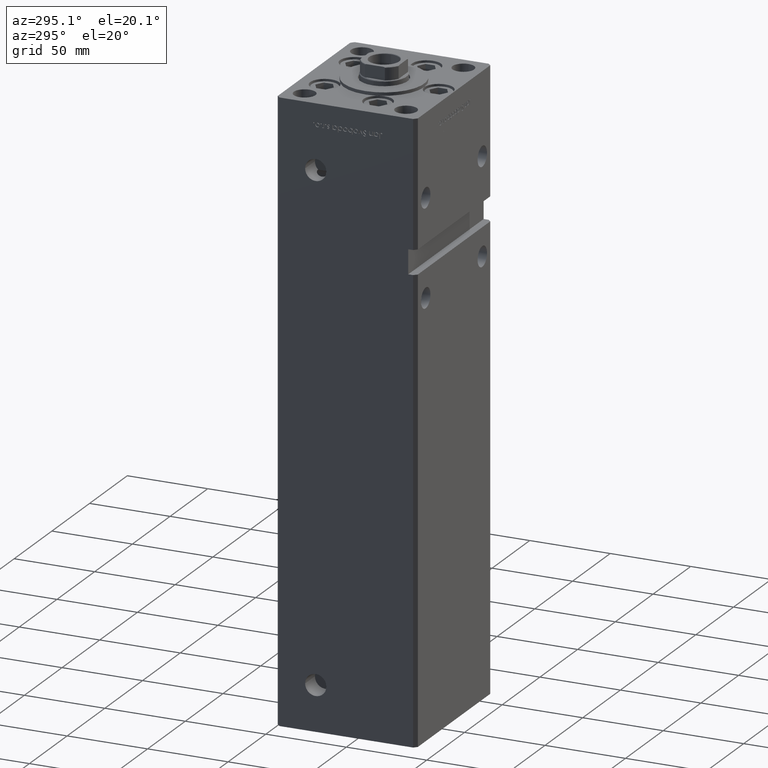
[diagram: clean part render]
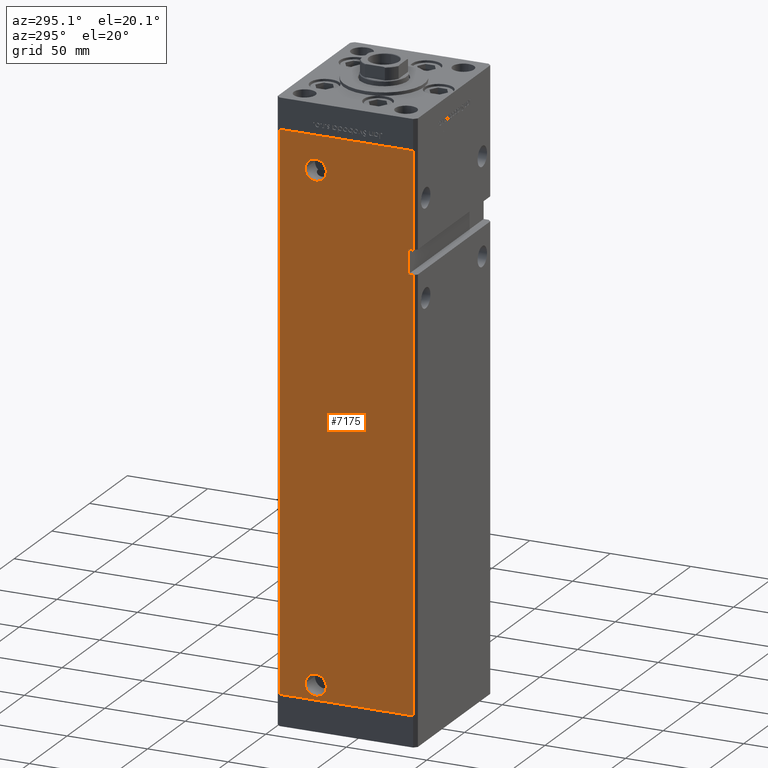
[diagram: same view with one face highlighted and labeled with its STEP entity id]
A machine part, auxiliary view. The second image highlights one B-rep face of the part: STEP entity #7175.
In plain terms, the highlighted planar face has unit normal (1, 0, 0).
Its self-contained STEP definition (entity closure, byte-faithful):
#287 = CARTESIAN_POINT ( 'NONE',  ( -49.99999999999998579, -41.49999999999999289, 264.0000000000000000 ) ) ;
#905 = ORIENTED_EDGE ( 'NONE', *, *, #18878, .F. ) ;
#910 = VECTOR ( 'NONE', #52825, 1000.000000000000000 ) ;
#2425 = VERTEX_POINT ( 'NONE', #37145 ) ;
#2441 = AXIS2_PLACEMENT_3D ( 'NONE', #9037, #46422, #51435 ) ;
#3126 = ORIENTED_EDGE ( 'NONE', *, *, #35845, .T. ) ;
#3244 = EDGE_CURVE ( 'NONE', #45665, #2425, #27998, .T. ) ;
#3525 = DIRECTION ( 'NONE',  ( 3.344045254895050973E-16, -1.000000000000000000, 0.000000000000000000 ) ) ;
#3748 = ORIENTED_EDGE ( 'NONE', *, *, #38235, .F. ) ;
#5147 = VERTEX_POINT ( 'NONE', #46918 ) ;
#5697 = FACE_BOUND ( 'NONE', #23379, .T. ) ;
#6819 = EDGE_CURVE ( 'NONE', #45665, #14748, #24698, .T. ) ;
#6898 = CIRCLE ( 'NONE', #33557, 6.580000000000044480 ) ;
#7175 = ADVANCED_FACE ( 'NONE', ( #18609, #5697, #39067 ), #38015, .F. ) ;
#7682 = EDGE_CURVE ( 'NONE', #42371, #16294, #16479, .T. ) ;
#7973 = CARTESIAN_POINT ( 'NONE',  ( -50.00000000000001421, 41.49999999999999289, 338.5000000000000000 ) ) ;
#8135 = VECTOR ( 'NONE', #29149, 1000.000000000000000 ) ;
#8549 = DIRECTION ( 'NONE',  ( -0.000000000000000000, -0.000000000000000000, -1.000000000000000000 ) ) ;
#9037 = CARTESIAN_POINT ( 'NONE',  ( -50.00000000000000711, 19.00000000000000000, 9.000000000000007105 ) ) ;
#9046 = LINE ( 'NONE', #38617, #47148 ) ;
#10661 = AXIS2_PLACEMENT_3D ( 'NONE', #19228, #11422, #39679 ) ;
#11422 = DIRECTION ( 'NONE',  ( -1.000000000000000000, -2.275047181608927644E-16, 0.000000000000000000 ) ) ;
#12486 = ORIENTED_EDGE ( 'NONE', *, *, #24379, .T. ) ;
#12556 = ORIENTED_EDGE ( 'NONE', *, *, #6819, .T. ) ;
#12753 = CARTESIAN_POINT ( 'NONE',  ( -49.99999999999998579, -38.50000000000000000, 279.0000000000000000 ) ) ;
#12896 = ORIENTED_EDGE ( 'NONE', *, *, #3244, .F. ) ;
#12935 = EDGE_LOOP ( 'NONE', ( #44466, #905 ) ) ;
#13424 = DIRECTION ( 'NONE',  ( -1.000000000000000000, -2.275047181608927644E-16, 0.000000000000000000 ) ) ;
#13727 = EDGE_CURVE ( 'NONE', #50215, #5147, #19638, .T. ) ;
#14568 = EDGE_CURVE ( 'NONE', #16294, #28428, #9046, .T. ) ;
#14727 = CARTESIAN_POINT ( 'NONE',  ( -50.00000000000000711, 25.58000000000004448, 317.5000000000000000 ) ) ;
#14748 = VERTEX_POINT ( 'NONE', #22147 ) ;
#16294 = VERTEX_POINT ( 'NONE', #287 ) ;
#16479 = LINE ( 'NONE', #45526, #19600 ) ;
#16506 = CARTESIAN_POINT ( 'NONE',  ( -50.00000000000000711, 19.00000000000000000, 317.5000000000000000 ) ) ;
#17722 = VERTEX_POINT ( 'NONE', #26250 ) ;
#18609 = FACE_OUTER_BOUND ( 'NONE', #21974, .T. ) ;
#18878 = EDGE_CURVE ( 'NONE', #22114, #26219, #6898, .T. ) ;
#19228 = CARTESIAN_POINT ( 'NONE',  ( -50.00000000000000711, 19.00000000000000000, 9.000000000000007105 ) ) ;
#19320 = ORIENTED_EDGE ( 'NONE', *, *, #7682, .F. ) ;
#19600 = VECTOR ( 'NONE', #25600, 1000.000000000000000 ) ;
#19638 = CIRCLE ( 'NONE', #2441, 6.580000000000002736 ) ;
#19679 = CARTESIAN_POINT ( 'NONE',  ( -50.00000000000001421, 41.49999999999999289, 338.5000000000000000 ) ) ;
#21974 = EDGE_LOOP ( 'NONE', ( #53164, #19320, #3748, #3126, #33306, #12896, #12556, #12486 ) ) ;
#22114 = VERTEX_POINT ( 'NONE', #14727 ) ;
#22147 = CARTESIAN_POINT ( 'NONE',  ( -50.00000000000001421, 41.49999999999999289, 0.000000000000000000 ) ) ;
#22381 = DIRECTION ( 'NONE',  ( 1.000000000000000000, 3.344045254895049987E-16, -0.000000000000000000 ) ) ;
#22958 = CARTESIAN_POINT ( 'NONE',  ( -50.00000000000001421, 41.49999999999999289, 0.000000000000000000 ) ) ;
#23379 = EDGE_LOOP ( 'NONE', ( #52990, #44931 ) ) ;
#24379 = EDGE_CURVE ( 'NONE', #14748, #28428, #43424, .T. ) ;
#24386 = LINE ( 'NONE', #40801, #33130 ) ;
#24698 = LINE ( 'NONE', #45418, #47893 ) ;
#25600 = DIRECTION ( 'NONE',  ( -0.000000000000000000, -1.000000000000000000, -0.000000000000000000 ) ) ;
#25708 = DIRECTION ( 'NONE',  ( -0.000000000000000000, -0.000000000000000000, -1.000000000000000000 ) ) ;
#26204 = DIRECTION ( 'NONE',  ( 3.344045254895050973E-16, -1.000000000000000000, 0.000000000000000000 ) ) ;
#26219 = VERTEX_POINT ( 'NONE', #34881 ) ;
#26250 = CARTESIAN_POINT ( 'NONE',  ( -49.99999999999998579, -38.50000000000000000, 279.0000000000000000 ) ) ;
#26668 = DIRECTION ( 'NONE',  ( -3.344045254895049987E-16, 1.000000000000000000, 0.000000000000000000 ) ) ;
#26687 = CARTESIAN_POINT ( 'NONE',  ( -49.99999999999998579, -41.49999999999999289, 279.0000000000000000 ) ) ;
#26755 = CARTESIAN_POINT ( 'NONE',  ( -49.99999999999998579, -38.50000000000000000, 264.0000000000000000 ) ) ;
#27675 = VECTOR ( 'NONE', #26204, 1000.000000000000000 ) ;
#27998 = LINE ( 'NONE', #19679, #50837 ) ;
#28428 = VERTEX_POINT ( 'NONE', #44683 ) ;
#29149 = DIRECTION ( 'NONE',  ( -0.000000000000000000, -1.000000000000000000, -0.000000000000000000 ) ) ;
#29395 = DIRECTION ( 'NONE',  ( 0.000000000000000000, -1.000000000000000000, 0.000000000000000000 ) ) ;
#29597 = AXIS2_PLACEMENT_3D ( 'NONE', #33861, #13424, #42214 ) ;
#33130 = VECTOR ( 'NONE', #44835, 1000.000000000000000 ) ;
#33200 = LINE ( 'NONE', #12753, #8135 ) ;
#33272 = EDGE_CURVE ( 'NONE', #5147, #50215, #46734, .T. ) ;
#33306 = ORIENTED_EDGE ( 'NONE', *, *, #43021, .F. ) ;
#33557 = AXIS2_PLACEMENT_3D ( 'NONE', #16506, #49335, #29395 ) ;
#33861 = CARTESIAN_POINT ( 'NONE',  ( -50.00000000000000711, 19.00000000000000000, 317.5000000000000000 ) ) ;
#34881 = CARTESIAN_POINT ( 'NONE',  ( -50.00000000000000711, 12.41999999999995552, 317.5000000000000000 ) ) ;
#35347 = EDGE_CURVE ( 'NONE', #26219, #22114, #52810, .T. ) ;
#35612 = LINE ( 'NONE', #40452, #910 ) ;
#35845 = EDGE_CURVE ( 'NONE', #17722, #50509, #33200, .T. ) ;
#37145 = CARTESIAN_POINT ( 'NONE',  ( -49.99999999999998579, -41.49999999999999289, 338.5000000000000000 ) ) ;
#38015 = PLANE ( 'NONE',  #43635 ) ;
#38235 = EDGE_CURVE ( 'NONE', #17722, #42371, #24386, .T. ) ;
#38617 = CARTESIAN_POINT ( 'NONE',  ( -49.99999999999998579, -41.49999999999999289, 338.5000000000000000 ) ) ;
#39067 = FACE_BOUND ( 'NONE', #12935, .T. ) ;
#39679 = DIRECTION ( 'NONE',  ( 0.000000000000000000, -1.000000000000000000, 0.000000000000000000 ) ) ;
#40452 = CARTESIAN_POINT ( 'NONE',  ( -49.99999999999998579, -41.49999999999999289, 338.5000000000000000 ) ) ;
#40801 = CARTESIAN_POINT ( 'NONE',  ( -49.99999999999998579, -38.50000000000000000, 279.0000000000000000 ) ) ;
#40821 = CARTESIAN_POINT ( 'NONE',  ( -50.00000000000000711, 12.41999999999999638, 9.000000000000007105 ) ) ;
#42214 = DIRECTION ( 'NONE',  ( 0.000000000000000000, -1.000000000000000000, 0.000000000000000000 ) ) ;
#42322 = CARTESIAN_POINT ( 'NONE',  ( -50.00000000000001421, 41.49999999999999289, 338.5000000000000000 ) ) ;
#42371 = VERTEX_POINT ( 'NONE', #26755 ) ;
#43021 = EDGE_CURVE ( 'NONE', #2425, #50509, #35612, .T. ) ;
#43424 = LINE ( 'NONE', #22958, #27675 ) ;
#43635 = AXIS2_PLACEMENT_3D ( 'NONE', #42322, #22381, #26668 ) ;
#44466 = ORIENTED_EDGE ( 'NONE', *, *, #35347, .F. ) ;
#44683 = CARTESIAN_POINT ( 'NONE',  ( -49.99999999999998579, -41.49999999999999289, 0.000000000000000000 ) ) ;
#44835 = DIRECTION ( 'NONE',  ( 0.000000000000000000, 0.000000000000000000, -1.000000000000000000 ) ) ;
#44931 = ORIENTED_EDGE ( 'NONE', *, *, #33272, .F. ) ;
#45418 = CARTESIAN_POINT ( 'NONE',  ( -50.00000000000001421, 41.49999999999999289, 338.5000000000000000 ) ) ;
#45526 = CARTESIAN_POINT ( 'NONE',  ( -49.99999999999998579, -38.50000000000000000, 264.0000000000000000 ) ) ;
#45665 = VERTEX_POINT ( 'NONE', #7973 ) ;
#46422 = DIRECTION ( 'NONE',  ( -1.000000000000000000, -2.275047181608927644E-16, 0.000000000000000000 ) ) ;
#46734 = CIRCLE ( 'NONE', #10661, 6.580000000000002736 ) ;
#46918 = CARTESIAN_POINT ( 'NONE',  ( -50.00000000000000711, 25.58000000000000185, 9.000000000000007105 ) ) ;
#47148 = VECTOR ( 'NONE', #25708, 1000.000000000000000 ) ;
#47893 = VECTOR ( 'NONE', #8549, 1000.000000000000000 ) ;
#49335 = DIRECTION ( 'NONE',  ( -1.000000000000000000, -2.275047181608927644E-16, 0.000000000000000000 ) ) ;
#50215 = VERTEX_POINT ( 'NONE', #40821 ) ;
#50509 = VERTEX_POINT ( 'NONE', #26687 ) ;
#50837 = VECTOR ( 'NONE', #3525, 1000.000000000000000 ) ;
#51435 = DIRECTION ( 'NONE',  ( 0.000000000000000000, -1.000000000000000000, 0.000000000000000000 ) ) ;
#52810 = CIRCLE ( 'NONE', #29597, 6.580000000000044480 ) ;
#52825 = DIRECTION ( 'NONE',  ( -0.000000000000000000, -0.000000000000000000, -1.000000000000000000 ) ) ;
#52990 = ORIENTED_EDGE ( 'NONE', *, *, #13727, .F. ) ;
#53164 = ORIENTED_EDGE ( 'NONE', *, *, #14568, .F. ) ;